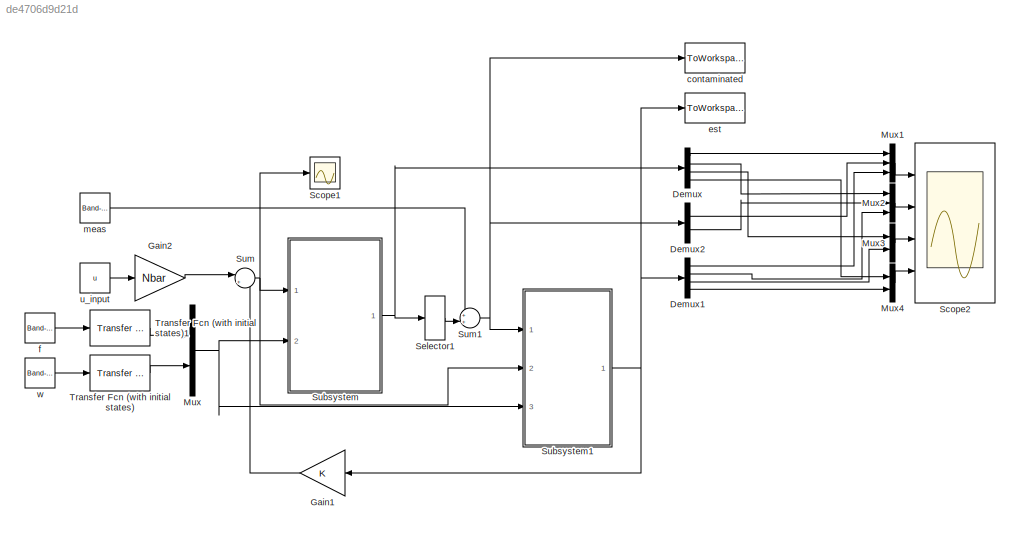
MODEL slx_de4706d9d21d
KIND model
CONFIG AbsTol = auto
CONFIG EnableMultiTasking = off
CONFIG FixedStep = auto
CONFIG MaxStep = auto
CONFIG MinStep = auto
CONFIG RelTol = 1e-3
CONFIG SampleTimeConstraint = Unconstrained
CONFIG Solver = VariableStepAuto
CONFIG SolverName = VariableStepAuto
CONFIG StartTime = 0.0
CONFIG StopTime = duration
BLOCK [Demux] Demux
  DisplayOption = bar
  Ports = [1, 4]
BLOCK [Demux] Demux1
  DisplayOption = bar
  Ports = [1, 4]
BLOCK [Demux] Demux2
  DisplayOption = bar
  Outputs = 2
  Ports = [1, 2]
BLOCK [Gain] Gain1
  Gain = K
  Multiplication = Matrix(K*u)
  OutDataTypeStr = Inherit: Inherit via internal rule
  ParamDataTypeStr = Inherit: Inherit via internal rule
  SaturateOnIntegerOverflow = off
BLOCK [Gain] Gain2
  Gain = Nbar
  Multiplication = Matrix(K*u)
  OutDataTypeStr = Inherit: Inherit via internal rule
  ParamDataTypeStr = Inherit: Inherit via internal rule
  SaturateOnIntegerOverflow = off
BLOCK [Mux] Mux
  DisplayOption = bar
  Inputs = 2
  Ports = [2, 1]
BLOCK [Mux] Mux1
  DisplayOption = bar
  Inputs = 3
  Ports = [3, 1]
BLOCK [Mux] Mux2
  DisplayOption = bar
  Inputs = 3
  Ports = [3, 1]
BLOCK [Mux] Mux3
  DisplayOption = bar
  Inputs = 2
  Ports = [2, 1]
BLOCK [Mux] Mux4
  DisplayOption = bar
  Inputs = 2
  Ports = [2, 1]
BLOCK [Scope] Scope1
  NumInputPorts = 1
  Ports = [1]
  ScopeSpecificationString = Simulink.scopes.TimeScopeBlockCfg('CurrentConfiguration', extmgr.ConfigurationSet(extmgr.Configuration('Core','General UI',true),extmgr.Configuration('Core','Source UI',true),extmgr.Configuration('Sources','WiredSimulink',true,'DataLoggingVariableName','ScopeData1'),extmgr.Configuration('Visuals','Time Domain',true),extmgr.Configuration('Tools','Plot Navigation',true),extmgr.Configuration('Tools',...<+40ch>
BLOCK [Scope] Scope2
  NumInputPorts = 4
  Ports = [4]
  ScopeSpecificationString = Simulink.scopes.TimeScopeBlockCfg('CurrentConfiguration', extmgr.ConfigurationSet(extmgr.Configuration('Core','General UI',true),extmgr.Configuration('Core','Source UI',true),extmgr.Configuration('Sources','WiredSimulink',true,'DataLoggingVariableName','ScopeData1'),extmgr.Configuration('Visuals','Time Domain',true,'SerializedDisplays',{struct('MinYLimReal','-3.75638','MaxYLimReal','24.81159','YLa...<+3515ch>
BLOCK [Selector] Selector1
  IndexOptions = Index vector (dialog)
  Indices = [1 2]
  InputPortWidth = 4
  OutputSizes = 1
  Ports = [1, 1]
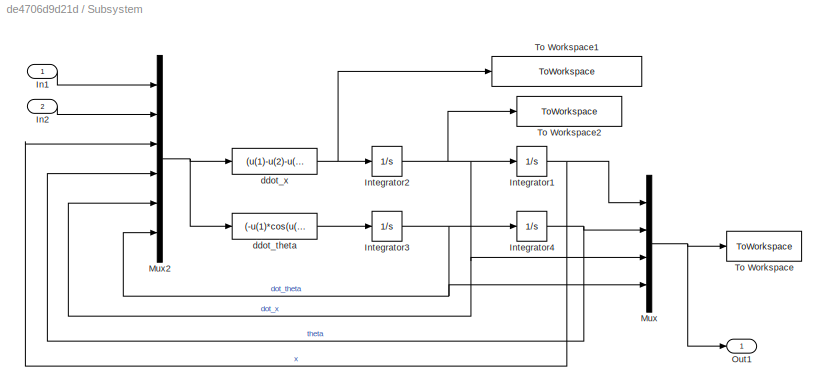
BLOCK [SubSystem] Subsystem
  Ports = [2, 1]
  RequestExecContextInheritance = off
  Variant = off
BLOCK [Inport] Subsystem/In1
  IconDisplay = Port number
BLOCK [Inport] Subsystem/In2
  IconDisplay = Port number
  Port = 2
BLOCK [Integrator] Subsystem/Integrator1
  Ports = [1, 1]
BLOCK [Integrator] Subsystem/Integrator2
  Ports = [1, 1]
BLOCK [Integrator] Subsystem/Integrator3
  Ports = [1, 1]
BLOCK [Integrator] Subsystem/Integrator4
  Ports = [1, 1]
BLOCK [Mux] Subsystem/Mux
  DisplayOption = bar
  Ports = [4, 1]
BLOCK [Mux] Subsystem/Mux2
  DisplayOption = bar
  Inputs = 6
  Ports = [6, 1]
BLOCK [Outport] Subsystem/Out1
  IconDisplay = Port number
BLOCK [ToWorkspace] Subsystem/To Workspace
  FixptAsFi = on
  MaxDataPoints = inf
  Ports = [1]
  SampleTime = -1
  Save2DSignal = 3-D array (concatenate along third dimension)
  SaveFormat = Structure With Time
  VariableName = state_data
BLOCK [ToWorkspace] Subsystem/To Workspace1
  FixptAsFi = on
  MaxDataPoints = inf
  Ports = [1]
  SampleTime = -1
  Save2DSignal = 3-D array (concatenate along third dimension)
  SaveFormat = Structure With Time
  VariableName = linear_acceleration
BLOCK [ToWorkspace] Subsystem/To Workspace2
  FixptAsFi = on
  MaxDataPoints = inf
  Ports = [1]
  SampleTime = -1
  Save2DSignal = 3-D array (concatenate along third dimension)
  SaveFormat = Structure With Time
  VariableName = linear_velocity
BLOCK [Fcn] Subsystem/ddot_theta
  Expr = (-u(1)*cos(u(5))+u(3)*cos(u(5))-m*L*u(7)^2*sin(u(5))*cos(u(5))+(M+m)*g*sin(u(5))-(M/m)*u(2)*cos(u(5))+b*u(6)*cos(u(5))+k*u(4)*cos(u(5)))/(L*(M+m*sin(u(5))^2))
BLOCK [Fcn] Subsystem/ddot_x
  Expr = (u(1)-u(2)-u(3)+u(2)*cos(u(5))^2+m*L*u(7)^2*sin(u(5))-m*g*sin(u(5))*cos(u(5))-b*u(6)-k*u(4))/(M+m*sin(u(5))^2)
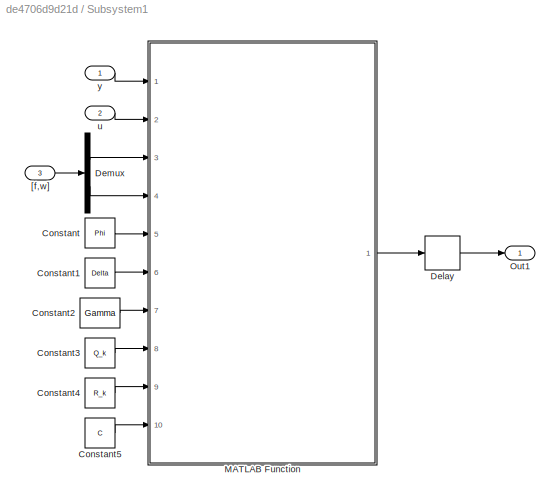
BLOCK [SubSystem] Subsystem1
  Ports = [3, 1]
  RequestExecContextInheritance = off
  Variant = off
BLOCK [Constant] Subsystem1/Constant
  Value = Phi
BLOCK [Constant] Subsystem1/Constant1
  Value = Delta
BLOCK [Constant] Subsystem1/Constant2
  Value = Gamma
BLOCK [Constant] Subsystem1/Constant3
  Value = Q_k
BLOCK [Constant] Subsystem1/Constant4
  Value = R_k
BLOCK [Constant] Subsystem1/Constant5
  Value = C
BLOCK [Delay] Subsystem1/Delay
  DelayLength = 1
  InitialCondition = 0
  InputPortMap = u0
  Ports = [1, 1]
BLOCK [Demux] Subsystem1/Demux
  DisplayOption = bar
  Outputs = 2
  Ports = [1, 2]
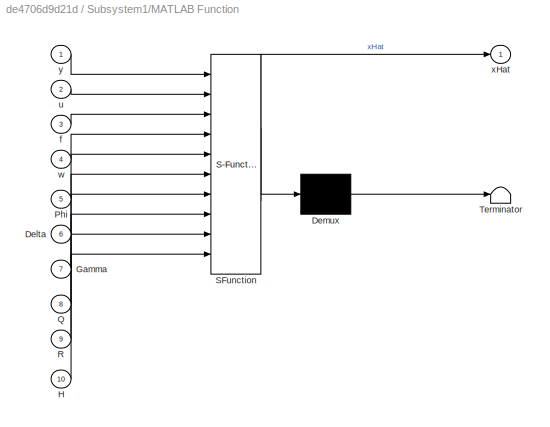
BLOCK [SubSystem] Subsystem1/MATLAB Function
  ErrorFcn = Stateflow.Translate.translate
  PermitHierarchicalResolution = ExplicitOnly
  Ports = [10, 1]
  RequestExecContextInheritance = off
  SFBlockType = MATLAB Function
  TreatAsAtomicUnit = on
  Variant = off
BLOCK [Demux] Subsystem1/MATLAB Function/ Demux 
  Outputs = 1
  Ports = [1, 1]
BLOCK [S-Function] Subsystem1/MATLAB Function/ SFunction 
  EnableBusSupport = on
  FunctionName = sf_sfun
  PortCounts = [10 2]
  Ports = [10, 2]
  SFcnIsStateOwnerBlock = off
  SFunctionDeploymentMode = off
  Tag = Stateflow S-Function pdl_nonlinear_hw3n 2
BLOCK [Terminator] Subsystem1/MATLAB Function/ Terminator 
BLOCK [Inport] Subsystem1/MATLAB Function/Delta
  IconDisplay = Port number
  Port = 6
BLOCK [Inport] Subsystem1/MATLAB Function/Gamma
  IconDisplay = Port number
  Port = 7
BLOCK [Inport] Subsystem1/MATLAB Function/H
  IconDisplay = Port number
  Port = 10
BLOCK [Inport] Subsystem1/MATLAB Function/Phi
  IconDisplay = Port number
  Port = 5
BLOCK [Inport] Subsystem1/MATLAB Function/Q
  IconDisplay = Port number
  Port = 8
BLOCK [Inport] Subsystem1/MATLAB Function/R
  IconDisplay = Port number
  Port = 9
BLOCK [Inport] Subsystem1/MATLAB Function/f
  IconDisplay = Port number
  Port = 3
BLOCK [Inport] Subsystem1/MATLAB Function/u
  IconDisplay = Port number
  Port = 2
BLOCK [Inport] Subsystem1/MATLAB Function/w
  IconDisplay = Port number
  Port = 4
BLOCK [Outport] Subsystem1/MATLAB Function/xHat
  IconDisplay = Port number
BLOCK [Inport] Subsystem1/MATLAB Function/y
  IconDisplay = Port number
BLOCK [Outport] Subsystem1/Out1
  IconDisplay = Port number
BLOCK [Inport] Subsystem1/[f,w]
  IconDisplay = Port number
  Port = 3
BLOCK [Inport] Subsystem1/u
  IconDisplay = Port number
  Port = 2
BLOCK [Inport] Subsystem1/y
  IconDisplay = Port number
BLOCK [Sum] Sum
  IconShape = round
  InputSameDT = off
  Inputs = |+-
  OutDataTypeStr = Inherit: Inherit via internal rule
  Ports = [2, 1]
  SaturateOnIntegerOverflow = off
BLOCK [Sum] Sum1
  IconShape = round
  InputSameDT = off
  Inputs = ++|
  OutDataTypeStr = Inherit: Inherit via internal rule
  Ports = [2, 1]
  SaturateOnIntegerOverflow = off
BLOCK [Reference] Transfer Fcn (with initial states)  REF=simulink_extras/Additional
Linear/Transfer Fcn
(with initial states)
  Ports = [1, 1]
  SourceBlock = simulink_extras/Additional\nLinear/Transfer Fcn\n(with initial states)
  SourceProductBaseCode = SL
  SourceProductName = Simulink
  SourceType = Transfer Function with Initial States
BLOCK [Reference] Transfer Fcn (with initial states)1  REF=simulink_extras/Additional
Linear/Transfer Fcn
(with initial states)
  Ports = [1, 1]
  SourceBlock = simulink_extras/Additional\nLinear/Transfer Fcn\n(with initial states)
  SourceProductBaseCode = SL
  SourceProductName = Simulink
  SourceType = Transfer Function with Initial States
BLOCK [ToWorkspace] contaminated
  MaxDataPoints = inf
  Ports = [1]
  SampleTime = Ts
  SaveFormat = Structure With Time
  VariableName = contmn
BLOCK [ToWorkspace] est
  MaxDataPoints = inf
  Ports = [1]
  SampleTime = Ts
  SaveFormat = Structure With Time
  VariableName = est
BLOCK [Reference] f  REF=simulink/Sources/Band-Limited
White Noise
  Ports = [0, 1]
  SourceBlock = simulink/Sources/Band-Limited\nWhite Noise
  SourceProductBaseCode = SL
  SourceProductName = Simulink
  SourceType = Band-Limited White Noise.
BLOCK [Reference] meas  REF=simulink/Sources/Band-Limited
White Noise
  Ports = [0, 1]
  SourceBlock = simulink/Sources/Band-Limited\nWhite Noise
  SourceProductBaseCode = SL
  SourceProductName = Simulink
  SourceType = Band-Limited White Noise.
BLOCK [Constant] u_input
  Value = u
BLOCK [Reference] w  REF=simulink/Sources/Band-Limited
White Noise
  Ports = [0, 1]
  SourceBlock = simulink/Sources/Band-Limited\nWhite Noise
  SourceProductBaseCode = SL
  SourceProductName = Simulink
  SourceType = Band-Limited White Noise.
LINE Demux1:1 -> Mux1:3
LINE Demux1:2 -> Mux2:3
LINE Demux1:3 -> Mux3:2
LINE Demux1:4 -> Mux4:2
LINE Demux2:1 -> Mux1:2
LINE Demux2:2 -> Mux2:2
LINE Demux:1 -> Mux1:1
LINE Demux:2 -> Mux2:1
LINE Demux:3 -> Mux3:1
LINE Demux:4 -> Mux4:1
LINE Gain1:1 -> Sum:2
LINE Gain2:1 -> Sum:1
LINE Mux1:1 -> Scope2:1
LINE Mux2:1 -> Scope2:2
LINE Mux3:1 -> Scope2:3
LINE Mux4:1 -> Scope2:4
NET Mux:1 -> Subsystem1:3, Subsystem:2
LINE Selector1:1 -> Sum1:2
LINE Subsystem/In1:1 -> Subsystem/Mux2:1
LINE Subsystem/In2:1 -> Subsystem/Mux2:2
NET Subsystem/Integrator1:1 -> Subsystem/Mux2:3, Subsystem/Mux:1
NET Subsystem/Integrator2:1 -> Subsystem/Integrator1:1, Subsystem/Mux2:5, Subsystem/Mux:3, Subsystem/To Workspace2:1
NET Subsystem/Integrator3:1 -> Subsystem/Integrator4:1, Subsystem/Mux2:6, Subsystem/Mux:4
NET Subsystem/Integrator4:1 -> Subsystem/Mux2:4, Subsystem/Mux:2
NET Subsystem/Mux2:1 -> Subsystem/ddot_theta:1, Subsystem/ddot_x:1
NET Subsystem/Mux:1 -> Subsystem/Out1:1, Subsystem/To Workspace:1
LINE Subsystem/ddot_theta:1 -> Subsystem/Integrator3:1
NET Subsystem/ddot_x:1 -> Subsystem/Integrator2:1, Subsystem/To Workspace1:1
LINE Subsystem1/Constant1:1 -> Subsystem1/MATLAB Function:6
LINE Subsystem1/Constant2:1 -> Subsystem1/MATLAB Function:7
LINE Subsystem1/Constant3:1 -> Subsystem1/MATLAB Function:8
LINE Subsystem1/Constant4:1 -> Subsystem1/MATLAB Function:9
LINE Subsystem1/Constant5:1 -> Subsystem1/MATLAB Function:10
LINE Subsystem1/Constant:1 -> Subsystem1/MATLAB Function:5
LINE Subsystem1/Delay:1 -> Subsystem1/Out1:1
LINE Subsystem1/Demux:1 -> Subsystem1/MATLAB Function:3
LINE Subsystem1/Demux:2 -> Subsystem1/MATLAB Function:4
LINE Subsystem1/MATLAB Function:1 -> Subsystem1/Delay:1
LINE Subsystem1/[f,w]:1 -> Subsystem1/Demux:1
LINE Subsystem1/u:1 -> Subsystem1/MATLAB Function:2
LINE Subsystem1/y:1 -> Subsystem1/MATLAB Function:1
NET Subsystem1:1 -> Demux1:1, Gain1:1, est:1
NET Subsystem:1 -> Demux:1, Selector1:1
NET Sum1:1 -> Demux2:1, Subsystem1:1, contaminated:1
NET Sum:1 -> Scope1:1, Subsystem1:2, Subsystem:1
LINE Transfer Fcn (with initial states)1:1 -> Mux:1
LINE Transfer Fcn (with initial states):1 -> Mux:2
LINE f:1 -> Transfer Fcn (with initial states)1:1
LINE meas:1 -> Sum1:1
LINE u_input:1 -> Gain2:1
LINE w:1 -> Transfer Fcn (with initial states):1
note: NET lines group one-source signal fan-out (src -> all destinations, sorted); 1:1 wires keep LINE
CHART Subsystem1/MATLAB Function states=1 transitions=1
  STATE_LABEL 'eML_blk_kernel()'
  STATE_LABEL 'SCRIPT:\nfunction xHat = fcn(y,u,f,w,Phi,Delta,Gamma,Q,R,H)\n\nM = 1;                  %[kg]    cart mass\nm = 0.75;               %[kg]    pendulum mass\nb = 0.1;                %[N·s/m] damper coefficient\nk = 0.15;               %[N/m]   spring stiffness\nsat_linear = 5*pi/180;  %[rad]   linear saturation for theta in linear model\nsat_nl = pi/2;          %[raf]   saturation for theta in nonlinear mode...<+965ch>'
